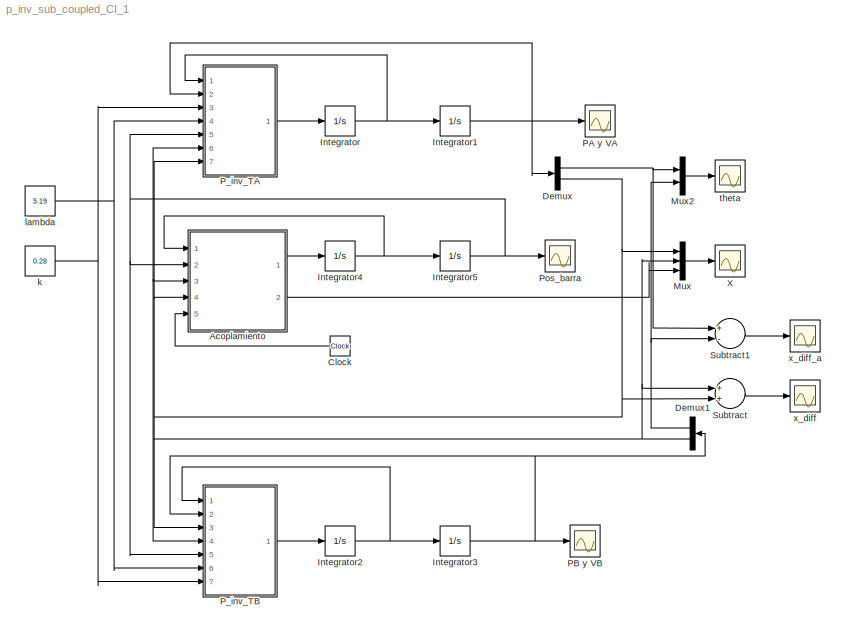
MODEL p_inv_sub_coupled_CI_1
KIND model
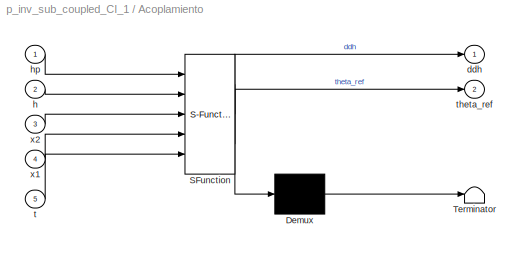
BLOCK [SubSystem] Acoplamiento
  ErrorFcn = Stateflow.Translate.translate
  PermitHierarchicalResolution = ExplicitOnly
  Ports = [5, 2]
  RequestExecContextInheritance = off
  SFBlockType = MATLAB Function
  SID = 17
  TreatAsAtomicUnit = on
  Variant = off
BLOCK [Demux] Acoplamiento/ Demux 
  Outputs = 1
  Ports = [1, 1]
  SID = 17::28
BLOCK [S-Function] Acoplamiento/ SFunction 
  EnableBusSupport = on
  FunctionName = sf_sfun
  PortCounts = [5 3]
  Ports = [5, 3]
  SFcnIsStateOwnerBlock = off
  SFunctionDeploymentMode = off
  SID = 17::27
  Tag = Stateflow S-Function p_inv_sub_coupled_CI_1 5
BLOCK [Terminator] Acoplamiento/ Terminator 
  SID = 17::29
BLOCK [Outport] Acoplamiento/ddh
  IconDisplay = Port number
  SID = 17::5
BLOCK [Inport] Acoplamiento/h
  IconDisplay = Port number
  Port = 2
  SID = 17::24
BLOCK [Inport] Acoplamiento/hp
  IconDisplay = Port number
  SID = 17::1
BLOCK [Inport] Acoplamiento/t
  IconDisplay = Port number
  Port = 5
  SID = 17::30
BLOCK [Outport] Acoplamiento/theta_ref
  IconDisplay = Port number
  Port = 2
  SID = 17::31
BLOCK [Inport] Acoplamiento/x1
  IconDisplay = Port number
  Port = 4
  SID = 17::25
BLOCK [Inport] Acoplamiento/x2
  IconDisplay = Port number
  Port = 3
  SID = 17::26
BLOCK [Clock] Clock
  SID = 25
BLOCK [Demux] Demux
  DisplayOption = bar
  Outputs = 2
  Ports = [1, 2]
  SID = 22
BLOCK [Demux] Demux1
  DisplayOption = bar
  Outputs = 2
  Ports = [1, 2]
  SID = 23
BLOCK [Integrator] Integrator
  InitialCondition = [0 0]
  Ports = [1, 1]
  SID = 2
BLOCK [Integrator] Integrator1
  InitialCondition = [CI1_sim  0]
  Ports = [1, 1]
  SID = 3
BLOCK [Integrator] Integrator2
  InitialCondition = [0 0]
  Ports = [1, 1]
  SID = 13
BLOCK [Integrator] Integrator3
  InitialCondition = [CI2_sim  0]
  Ports = [1, 1]
  SID = 14
BLOCK [Integrator] Integrator4
  Ports = [1, 1]
  SID = 18
BLOCK [Integrator] Integrator5
  Ports = [1, 1]
  SID = 19
BLOCK [Mux] Mux
  DisplayOption = bar
  Inputs = 3
  Ports = [3, 1]
  SID = 24
BLOCK [Mux] Mux2
  DisplayOption = bar
  Inputs = 2
  Ports = [2, 1]
  SID = 32
BLOCK [Scope] PA y VA
  NumInputPorts = 1
  Ports = [1]
  SID = 28
  ScopeSpecificationString = Simulink.scopes.TimeScopeBlockCfg('CurrentConfiguration', extmgr.ConfigurationSet(extmgr.Configuration('Core','General UI',true),extmgr.Configuration('Core','Source UI',true),extmgr.Configuration('Sources','WiredSimulink',true,'DataLoggingVariableName','ScopeData1'),extmgr.Configuration('Visuals','Time Domain',true,'SerializedDisplays',{struct('MinYLimReal','-7.82749','MaxYLimReal','7.21621','YLab...<+1461ch>
BLOCK [Scope] PB y VB
  NumInputPorts = 1
  Ports = [1]
  SID = 16
  ScopeSpecificationString = Simulink.scopes.TimeScopeBlockCfg('CurrentConfiguration', extmgr.ConfigurationSet(extmgr.Configuration('Core','General UI',true),extmgr.Configuration('Core','Source UI',true),extmgr.Configuration('Sources','WiredSimulink',true,'DataLoggingVariableName','ScopeData1','DataLoggingSaveFormat','StructureWithTime'),extmgr.Configuration('Visuals','Time Domain',true,'SerializedDisplays',{struct('MinYLimRe...<+1506ch>
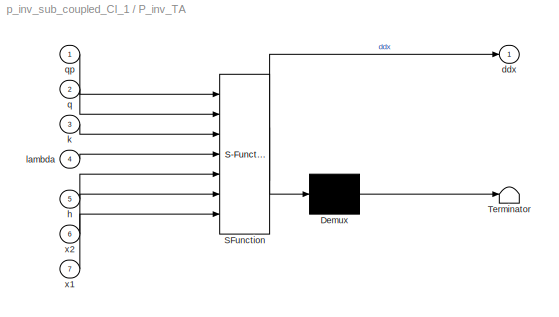
BLOCK [SubSystem] P_inv_TA
  ErrorFcn = Stateflow.Translate.translate
  PermitHierarchicalResolution = ExplicitOnly
  Ports = [7, 1]
  RequestExecContextInheritance = off
  SFBlockType = MATLAB Function
  SID = 4
  TreatAsAtomicUnit = on
  Variant = off
BLOCK [Demux] P_inv_TA/ Demux 
  Outputs = 1
  Ports = [1, 1]
  SID = 4::20
BLOCK [S-Function] P_inv_TA/ SFunction 
  EnableBusSupport = on
  FunctionName = sf_sfun
  PortCounts = [7 2]
  Ports = [7, 2]
  SFcnIsStateOwnerBlock = off
  SFunctionDeploymentMode = off
  SID = 4::19
  Tag = Stateflow S-Function p_inv_sub_coupled_CI_1 2
BLOCK [Terminator] P_inv_TA/ Terminator 
  SID = 4::21
BLOCK [Outport] P_inv_TA/ddx
  IconDisplay = Port number
  SID = 4::5
BLOCK [Inport] P_inv_TA/h
  IconDisplay = Port number
  Port = 5
  SID = 4::24
BLOCK [Inport] P_inv_TA/k
  IconDisplay = Port number
  Port = 3
  SID = 4::33
BLOCK [Inport] P_inv_TA/lambda
  IconDisplay = Port number
  Port = 4
  SID = 4::34
BLOCK [Inport] P_inv_TA/q
  IconDisplay = Port number
  Port = 2
  SID = 4::1
BLOCK [Inport] P_inv_TA/qp
  IconDisplay = Port number
  SID = 4::22
BLOCK [Inport] P_inv_TA/x1
  IconDisplay = Port number
  Port = 7
  SID = 4::27
BLOCK [Inport] P_inv_TA/x2
  IconDisplay = Port number
  Port = 6
  SID = 4::28
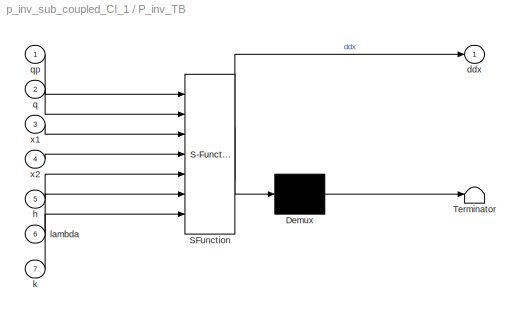
BLOCK [SubSystem] P_inv_TB
  ErrorFcn = Stateflow.Translate.translate
  PermitHierarchicalResolution = ExplicitOnly
  Ports = [7, 1]
  RequestExecContextInheritance = off
  SFBlockType = MATLAB Function
  SID = 15
  TreatAsAtomicUnit = on
  Variant = off
BLOCK [Demux] P_inv_TB/ Demux 
  Outputs = 1
  Ports = [1, 1]
  SID = 15::20
BLOCK [S-Function] P_inv_TB/ SFunction 
  EnableBusSupport = on
  FunctionName = sf_sfun
  PortCounts = [7 2]
  Ports = [7, 2]
  SFcnIsStateOwnerBlock = off
  SFunctionDeploymentMode = off
  SID = 15::19
  Tag = Stateflow S-Function p_inv_sub_coupled_CI_1 1
BLOCK [Terminator] P_inv_TB/ Terminator 
  SID = 15::21
BLOCK [Outport] P_inv_TB/ddx
  IconDisplay = Port number
  SID = 15::5
BLOCK [Inport] P_inv_TB/h
  IconDisplay = Port number
  Port = 5
  SID = 15::24
BLOCK [Inport] P_inv_TB/k
  IconDisplay = Port number
  Port = 7
  SID = 15::33
BLOCK [Inport] P_inv_TB/lambda
  IconDisplay = Port number
  Port = 6
  SID = 15::32
BLOCK [Inport] P_inv_TB/q
  IconDisplay = Port number
  Port = 2
  SID = 15::1
BLOCK [Inport] P_inv_TB/qp
  IconDisplay = Port number
  SID = 15::22
BLOCK [Inport] P_inv_TB/x1
  IconDisplay = Port number
  Port = 3
  SID = 15::25
BLOCK [Inport] P_inv_TB/x2
  IconDisplay = Port number
  Port = 4
  SID = 15::26
BLOCK [Scope] Pos_barra
  NumInputPorts = 1
  Ports = [1]
  SID = 20
  ScopeSpecificationString = Simulink.scopes.TimeScopeBlockCfg('CurrentConfiguration', extmgr.ConfigurationSet(extmgr.Configuration('Core','General UI',true),extmgr.Configuration('Core','Source UI',true),extmgr.Configuration('Sources','WiredSimulink',true,'DataLoggingVariableName','coupling','DataLoggingSaveFormat','StructureWithTime','DataLoggingDecimation','1','DataLoggingDecimateData',true),extmgr.Configuration('Visuals','...<+1747ch>
BLOCK [Sum] Subtract
  InputSameDT = off
  OutDataTypeStr = Inherit: Inherit via internal rule
  Ports = [2, 1]
  SID = 35
  SaturateOnIntegerOverflow = off
BLOCK [Sum] Subtract1
  InputSameDT = off
  Inputs = +-
  OutDataTypeStr = Inherit: Inherit via internal rule
  Ports = [2, 1]
  SID = 38
  SaturateOnIntegerOverflow = off
BLOCK [Scope] X
  NumInputPorts = 1
  Ports = [1]
  SID = 21
  ScopeSpecificationString = Simulink.scopes.TimeScopeBlockCfg('CurrentConfiguration', extmgr.ConfigurationSet(extmgr.Configuration('Core','General UI',true),extmgr.Configuration('Core','Source UI',true),extmgr.Configuration('Sources','WiredSimulink',true,'DataLogging',true,'DataLoggingVariableName','X','DataLoggingSaveFormat','Array','DataLoggingDecimation','1','DataLoggingDecimateData',true),extmgr.Configuration('Visuals','...<+1837ch>
BLOCK [Constant] k
  SID = 34
  Value = 0.28
BLOCK [Constant] lambda
  SID = 33
  Value = 5.19
BLOCK [Scope] theta
  NumInputPorts = 1
  Ports = [1]
  SID = 31
  ScopeSpecificationString = Simulink.scopes.TimeScopeBlockCfg('CurrentConfiguration', extmgr.ConfigurationSet(extmgr.Configuration('Core','General UI',true),extmgr.Configuration('Core','Source UI',true),extmgr.Configuration('Sources','WiredSimulink',true,'DataLogging',true,'DataLoggingVariableName','theta','DataLoggingSaveFormat','StructureWithTime','DataLoggingDecimation','1','DataLoggingDecimateData',true),extmgr.Configura...<+1827ch>
BLOCK [Scope] x_diff
  NumInputPorts = 1
  Ports = [1]
  SID = 36
  ScopeSpecificationString = Simulink.scopes.TimeScopeBlockCfg('CurrentConfiguration', extmgr.ConfigurationSet(extmgr.Configuration('Core','General UI',true),extmgr.Configuration('Core','Source UI',true),extmgr.Configuration('Sources','WiredSimulink',true,'DataLogging',true,'DataLoggingVariableName','x_diff','DataLoggingSaveFormat','Array','DataLoggingDecimation','1','DataLoggingDecimateData',true),extmgr.Configuration('Visua...<+1800ch>
BLOCK [Scope] x_diff_a
  NumInputPorts = 1
  Ports = [1]
  SID = 37
  ScopeSpecificationString = Simulink.scopes.TimeScopeBlockCfg('CurrentConfiguration', extmgr.ConfigurationSet(extmgr.Configuration('Core','General UI',true),extmgr.Configuration('Core','Source UI',true),extmgr.Configuration('Sources','WiredSimulink',true,'DataLogging',true,'DataLoggingVariableName','x_diff_a','DataLoggingSaveFormat','Array','DataLoggingDecimation','1','DataLoggingDecimateData',true),extmgr.Configuration('Vis...<+1800ch>
LINE Acoplamiento/ Demux :1 -> Acoplamiento/ Terminator :1
LINE Acoplamiento/ SFunction :1 -> Acoplamiento/ Demux :1
LINE Acoplamiento/ SFunction :2 -> Acoplamiento/ddh:1
LINE Acoplamiento/ SFunction :3 -> Acoplamiento/theta_ref:1
LINE Acoplamiento/h:1 -> Acoplamiento/ SFunction :2
LINE Acoplamiento/hp:1 -> Acoplamiento/ SFunction :1
LINE Acoplamiento/t:1 -> Acoplamiento/ SFunction :5
LINE Acoplamiento/x1:1 -> Acoplamiento/ SFunction :4
LINE Acoplamiento/x2:1 -> Acoplamiento/ SFunction :3
LINE Acoplamiento:1 -> Integrator4:1
LINE Acoplamiento:2 -> Mux:3
LINE Clock:1 -> Acoplamiento:5
NET Demux1:1 -> Mux2:2, Subtract1:2
NET Demux1:2 -> Acoplamiento:3, Mux:2, P_inv_TA:6, P_inv_TB:4, Subtract:1
NET Demux:1 -> Mux2:1, Subtract1:1
NET Demux:2 -> Acoplamiento:4, Mux:1, P_inv_TA:7, P_inv_TB:3, Subtract:2
NET Integrator1:1 -> Demux:1, PA y VA:1, P_inv_TA:2
NET Integrator2:1 -> Integrator3:1, P_inv_TB:1
NET Integrator3:1 -> Demux1:1, PB y VB:1, P_inv_TB:2
NET Integrator4:1 -> Acoplamiento:1, Integrator5:1
NET Integrator5:1 -> Acoplamiento:2, P_inv_TA:5, P_inv_TB:5, Pos_barra:1
NET Integrator:1 -> Integrator1:1, P_inv_TA:1
LINE Mux2:1 -> theta:1
LINE Mux:1 -> X:1
LINE P_inv_TA/ Demux :1 -> P_inv_TA/ Terminator :1
LINE P_inv_TA/ SFunction :1 -> P_inv_TA/ Demux :1
LINE P_inv_TA/ SFunction :2 -> P_inv_TA/ddx:1
LINE P_inv_TA/h:1 -> P_inv_TA/ SFunction :5
LINE P_inv_TA/k:1 -> P_inv_TA/ SFunction :3
LINE P_inv_TA/lambda:1 -> P_inv_TA/ SFunction :4
LINE P_inv_TA/q:1 -> P_inv_TA/ SFunction :2
LINE P_inv_TA/qp:1 -> P_inv_TA/ SFunction :1
LINE P_inv_TA/x1:1 -> P_inv_TA/ SFunction :7
LINE P_inv_TA/x2:1 -> P_inv_TA/ SFunction :6
LINE P_inv_TA:1 -> Integrator:1
LINE P_inv_TB/ Demux :1 -> P_inv_TB/ Terminator :1
LINE P_inv_TB/ SFunction :1 -> P_inv_TB/ Demux :1
LINE P_inv_TB/ SFunction :2 -> P_inv_TB/ddx:1
LINE P_inv_TB/h:1 -> P_inv_TB/ SFunction :5
LINE P_inv_TB/k:1 -> P_inv_TB/ SFunction :7
LINE P_inv_TB/lambda:1 -> P_inv_TB/ SFunction :6
LINE P_inv_TB/q:1 -> P_inv_TB/ SFunction :2
LINE P_inv_TB/qp:1 -> P_inv_TB/ SFunction :1
LINE P_inv_TB/x1:1 -> P_inv_TB/ SFunction :3
LINE P_inv_TB/x2:1 -> P_inv_TB/ SFunction :4
LINE P_inv_TB:1 -> Integrator2:1
LINE Subtract1:1 -> x_diff_a:1
LINE Subtract:1 -> x_diff:1
NET k:1 -> P_inv_TA:3, P_inv_TB:7
NET lambda:1 -> P_inv_TA:4, P_inv_TB:6
note: NET lines group one-source signal fan-out (src -> all destinations, sorted); 1:1 wires keep LINE
CHART P_inv_TB states=1 transitions=1
  STATE_LABEL 'eML_blk_kernel()'
CHART P_inv_TA states=1 transitions=1
  STATE_LABEL 'eML_blk_kernel()'
CHART Acoplamiento states=1 transitions=1
  STATE_LABEL 'eML_blk_kernel()'
